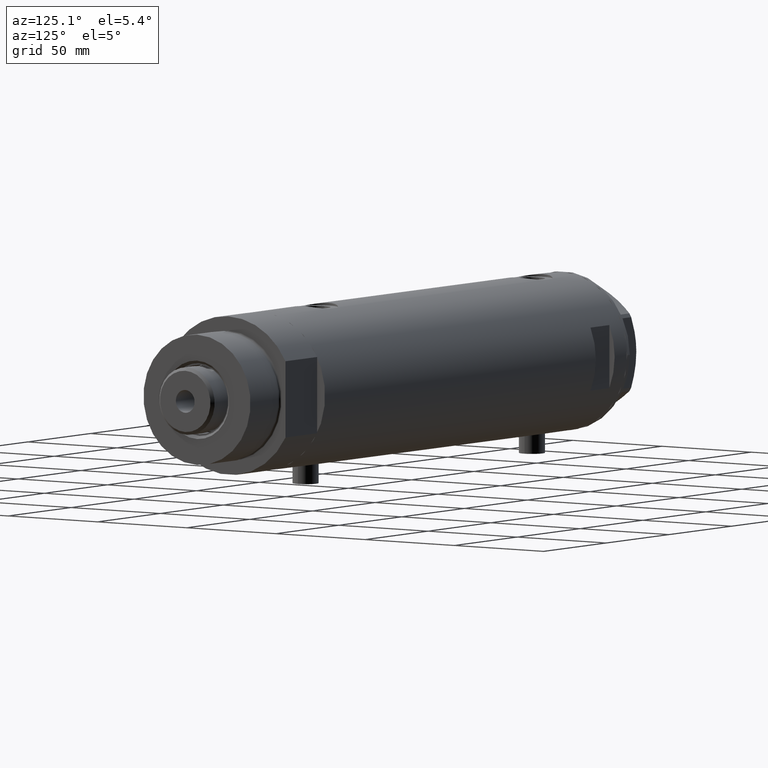
[diagram: clean part render]
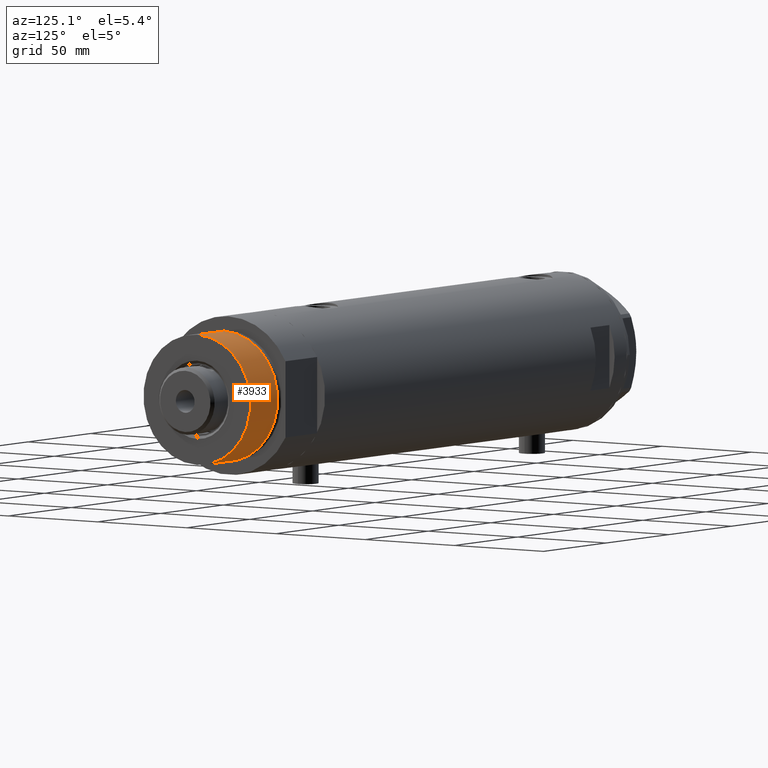
[diagram: same view with one face highlighted and labeled with its STEP entity id]
A machine part, auxiliary view. The second image highlights one B-rep face of the part: STEP entity #3933.
In plain terms, the highlighted cylindrical surface (partial cylindrical patch) has radius 30 mm, axis along (-1, -0, 0).
Its self-contained STEP definition (entity closure, byte-faithful):
#3 = EDGE_LOOP ( 'NONE', ( #3676, #402, #777, #2379 ) ) ;
#65 = CARTESIAN_POINT ( 'NONE',  ( -30.00000000000000000, 0.000000000000000000, 50.19999999999999574 ) ) ;
#111 = EDGE_CURVE ( 'NONE', #589, #585, #1762, .T. ) ;
#282 = DIRECTION ( 'NONE',  ( -0.000000000000000000, -0.000000000000000000, -1.000000000000000000 ) ) ;
#333 = DIRECTION ( 'NONE',  ( -0.000000000000000000, -0.000000000000000000, -1.000000000000000000 ) ) ;
#394 = CARTESIAN_POINT ( 'NONE',  ( 0.000000000000000000, 0.000000000000000000, 50.19999999999999574 ) ) ;
#402 = ORIENTED_EDGE ( 'NONE', *, *, #4728, .T. ) ;
#418 = AXIS2_PLACEMENT_3D ( 'NONE', #394, #333, #1874 ) ;
#464 = EDGE_CURVE ( 'NONE', #585, #1903, #2574, .T. ) ;
#585 = VERTEX_POINT ( 'NONE', #65 ) ;
#589 = VERTEX_POINT ( 'NONE', #4118 ) ;
#755 = CYLINDRICAL_SURFACE ( 'NONE', #418, 30.00000000000000000 ) ;
#777 = ORIENTED_EDGE ( 'NONE', *, *, #4093, .T. ) ;
#1143 = CARTESIAN_POINT ( 'NONE',  ( 0.000000000000000000, 0.000000000000000000, 28.57384048104054486 ) ) ;
#1361 = AXIS2_PLACEMENT_3D ( 'NONE', #1143, #4489, #3421 ) ;
#1482 = DIRECTION ( 'NONE',  ( -0.000000000000000000, -0.000000000000000000, -1.000000000000000000 ) ) ;
#1516 = AXIS2_PLACEMENT_3D ( 'NONE', #3873, #4594, #3067 ) ;
#1670 = CARTESIAN_POINT ( 'NONE',  ( -30.00000000000000000, 0.000000000000000000, 28.57384048104054486 ) ) ;
#1762 = CIRCLE ( 'NONE', #1516, 30.00000000000000000 ) ;
#1874 = DIRECTION ( 'NONE',  ( -1.000000000000000000, 0.000000000000000000, 0.000000000000000000 ) ) ;
#1903 = VERTEX_POINT ( 'NONE', #1670 ) ;
#2207 = CARTESIAN_POINT ( 'NONE',  ( 30.00000000000000000, 3.673940397442058389E-15, 50.19999999999999574 ) ) ;
#2379 = ORIENTED_EDGE ( 'NONE', *, *, #464, .F. ) ;
#2498 = LINE ( 'NONE', #2207, #3040 ) ;
#2574 = LINE ( 'NONE', #4051, #4386 ) ;
#2922 = FACE_OUTER_BOUND ( 'NONE', #3, .T. ) ;
#3040 = VECTOR ( 'NONE', #282, 1000.000000000000000 ) ;
#3067 = DIRECTION ( 'NONE',  ( 1.000000000000000000, 0.000000000000000000, 0.000000000000000000 ) ) ;
#3421 = DIRECTION ( 'NONE',  ( 1.000000000000000000, 0.000000000000000000, 0.000000000000000000 ) ) ;
#3428 = VERTEX_POINT ( 'NONE', #4599 ) ;
#3587 = CIRCLE ( 'NONE', #1361, 30.00000000000000000 ) ;
#3676 = ORIENTED_EDGE ( 'NONE', *, *, #111, .F. ) ;
#3873 = CARTESIAN_POINT ( 'NONE',  ( 0.000000000000000000, 0.000000000000000000, 50.19999999999999574 ) ) ;
#3933 = ADVANCED_FACE ( 'NONE', ( #2922 ), #755, .T. ) ;
#4051 = CARTESIAN_POINT ( 'NONE',  ( -30.00000000000000000, 0.000000000000000000, 50.19999999999999574 ) ) ;
#4093 = EDGE_CURVE ( 'NONE', #3428, #1903, #3587, .T. ) ;
#4118 = CARTESIAN_POINT ( 'NONE',  ( 30.00000000000000000, 3.673940397442058389E-15, 50.19999999999999574 ) ) ;
#4386 = VECTOR ( 'NONE', #1482, 1000.000000000000000 ) ;
#4489 = DIRECTION ( 'NONE',  ( -0.000000000000000000, -0.000000000000000000, 1.000000000000000000 ) ) ;
#4594 = DIRECTION ( 'NONE',  ( 0.000000000000000000, 0.000000000000000000, 1.000000000000000000 ) ) ;
#4599 = CARTESIAN_POINT ( 'NONE',  ( 30.00000000000000000, 3.673940397442058389E-15, 28.57384048104054486 ) ) ;
#4728 = EDGE_CURVE ( 'NONE', #589, #3428, #2498, .T. ) ;